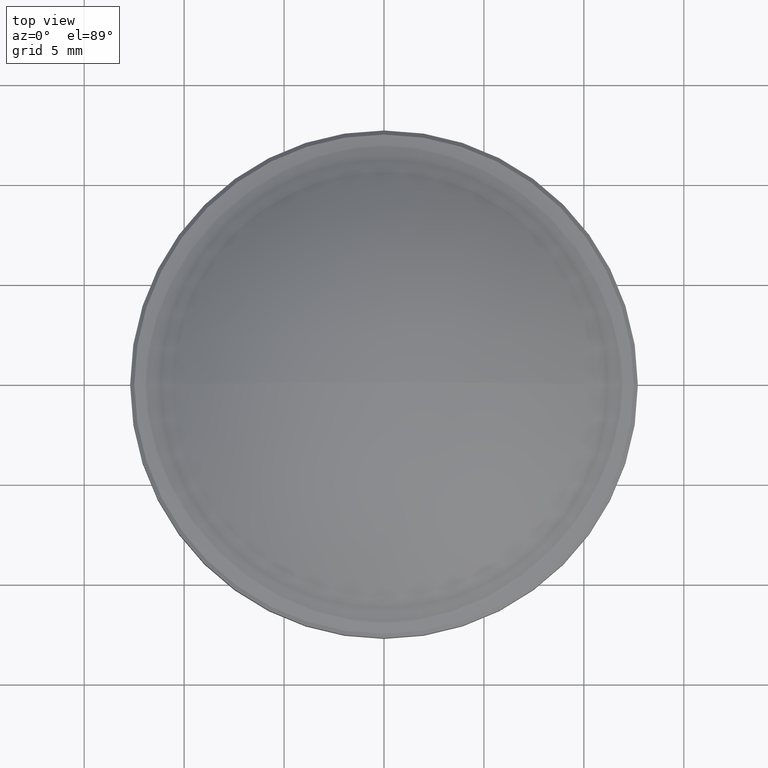
[diagram: clean part render]
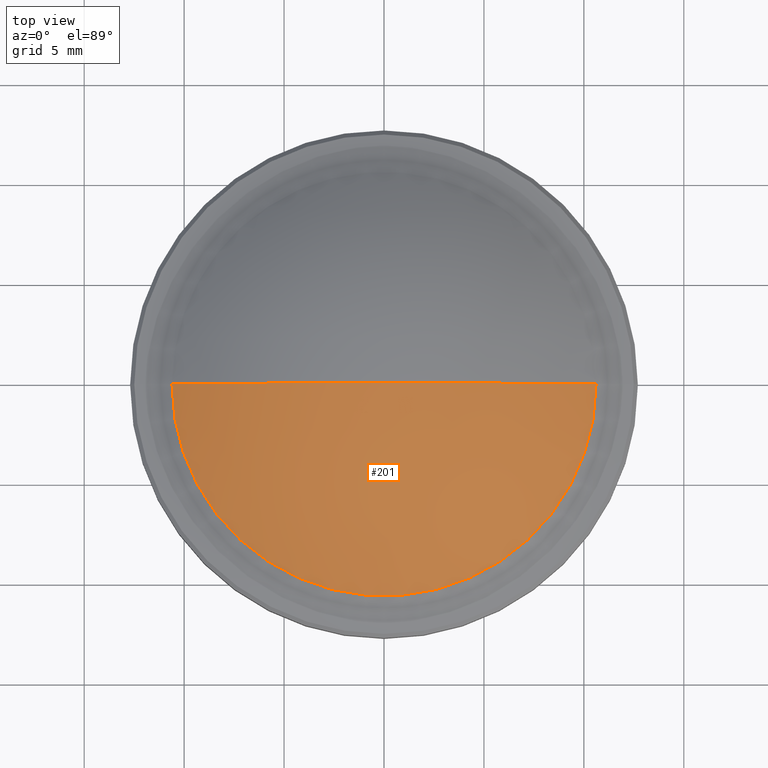
[diagram: same view with one face highlighted and labeled with its STEP entity id]
A machine part, top view. The second image highlights one B-rep face of the part: STEP entity #201.
In plain terms, the highlighted spherical surface has radius 18.252 mm.
Its self-contained STEP definition (entity closure, byte-faithful):
#14 = VERTEX_POINT ( 'NONE', #114 ) ;
#20 = CARTESIAN_POINT ( 'NONE',  ( -10.60895851618369967, 0.000000000000000000, 3.600121168435617580 ) ) ;
#25 = AXIS2_PLACEMENT_3D ( 'NONE', #84, #179, #301 ) ;
#45 = EDGE_CURVE ( 'NONE', #14, #174, #127, .T. ) ;
#50 = DIRECTION ( 'NONE',  ( -1.000000000000000000, 0.000000000000000000, 1.226362234330445841E-16 ) ) ;
#67 = SPHERICAL_SURFACE ( 'NONE', #257, 18.25199999999999889 ) ;
#71 = EDGE_CURVE ( 'NONE', #14, #181, #177, .T. ) ;
#72 = ORIENTED_EDGE ( 'NONE', *, *, #198, .F. ) ;
#84 = CARTESIAN_POINT ( 'NONE',  ( 0.000000000000000000, 0.000000000000000000, -11.25199999999999889 ) ) ;
#94 = FACE_OUTER_BOUND ( 'NONE', #124, .T. ) ;
#113 = DIRECTION ( 'NONE',  ( 0.000000000000000000, -1.000000000000000000, 0.000000000000000000 ) ) ;
#114 = CARTESIAN_POINT ( 'NONE',  ( 1.117612668901874404E-15, 0.000000000000000000, 6.999999999999999112 ) ) ;
#124 = EDGE_LOOP ( 'NONE', ( #293, #220, #72 ) ) ;
#127 = CIRCLE ( 'NONE', #25, 18.25199999999999889 ) ;
#143 = AXIS2_PLACEMENT_3D ( 'NONE', #261, #289, #50 ) ;
#160 = CARTESIAN_POINT ( 'NONE',  ( 0.000000000000000000, 0.000000000000000000, -11.25199999999999889 ) ) ;
#162 = DIRECTION ( 'NONE',  ( 0.000000000000000000, 0.000000000000000000, -1.000000000000000000 ) ) ;
#167 = CARTESIAN_POINT ( 'NONE',  ( 10.60895851618369967, 1.414654521538122764E-15, 3.600121168435614916 ) ) ;
#169 = CARTESIAN_POINT ( 'NONE',  ( 0.000000000000000000, 0.000000000000000000, -11.25199999999999889 ) ) ;
#171 = DIRECTION ( 'NONE',  ( -1.000000000000000000, 0.000000000000000000, 9.504292548634709852E-17 ) ) ;
#174 = VERTEX_POINT ( 'NONE', #167 ) ;
#177 = CIRCLE ( 'NONE', #217, 18.25199999999999889 ) ;
#179 = DIRECTION ( 'NONE',  ( -1.224646799147353207E-16, 1.000000000000000000, 1.499759782661857608E-32 ) ) ;
#181 = VERTEX_POINT ( 'NONE', #20 ) ;
#198 = EDGE_CURVE ( 'NONE', #174, #181, #291, .T. ) ;
#201 = ADVANCED_FACE ( 'NONE', ( #94 ), #67, .T. ) ;
#206 = DIRECTION ( 'NONE',  ( 0.000000000000000000, 1.000000000000000000, -0.000000000000000000 ) ) ;
#217 = AXIS2_PLACEMENT_3D ( 'NONE', #160, #113, #162 ) ;
#220 = ORIENTED_EDGE ( 'NONE', *, *, #71, .T. ) ;
#257 = AXIS2_PLACEMENT_3D ( 'NONE', #169, #206, #171 ) ;
#261 = CARTESIAN_POINT ( 'NONE',  ( 8.206617439655612360E-17, 0.000000000000000000, 3.600121168435616248 ) ) ;
#289 = DIRECTION ( 'NONE',  ( -1.224646799147353207E-16, -0.000000000000000000, -1.000000000000000000 ) ) ;
#291 = CIRCLE ( 'NONE', #143, 10.60895851618369967 ) ;
#293 = ORIENTED_EDGE ( 'NONE', *, *, #45, .F. ) ;
#301 = DIRECTION ( 'NONE',  ( -1.000000000000000000, -1.224646799147353207E-16, 0.000000000000000000 ) ) ;